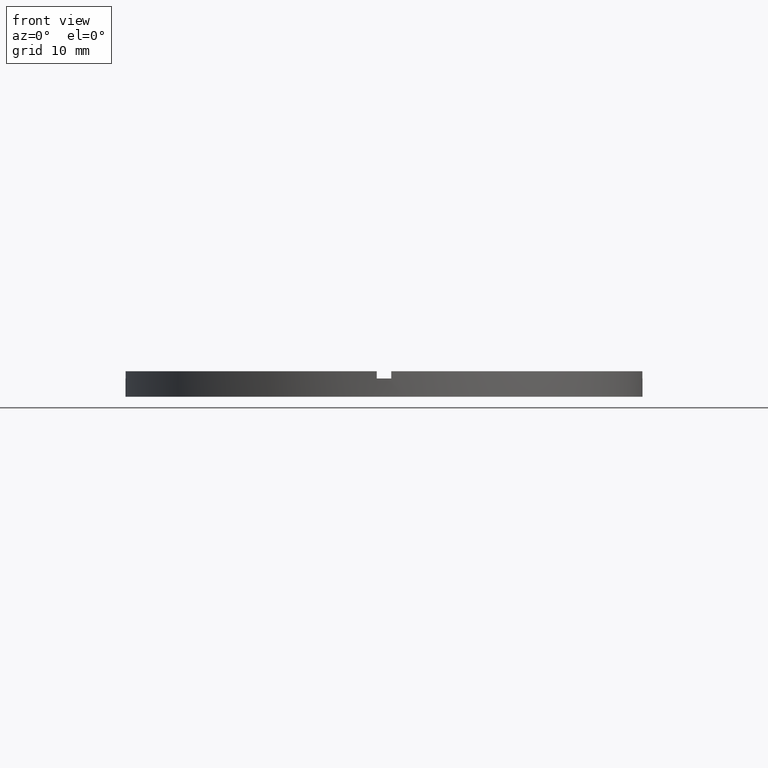
[diagram: clean part render]
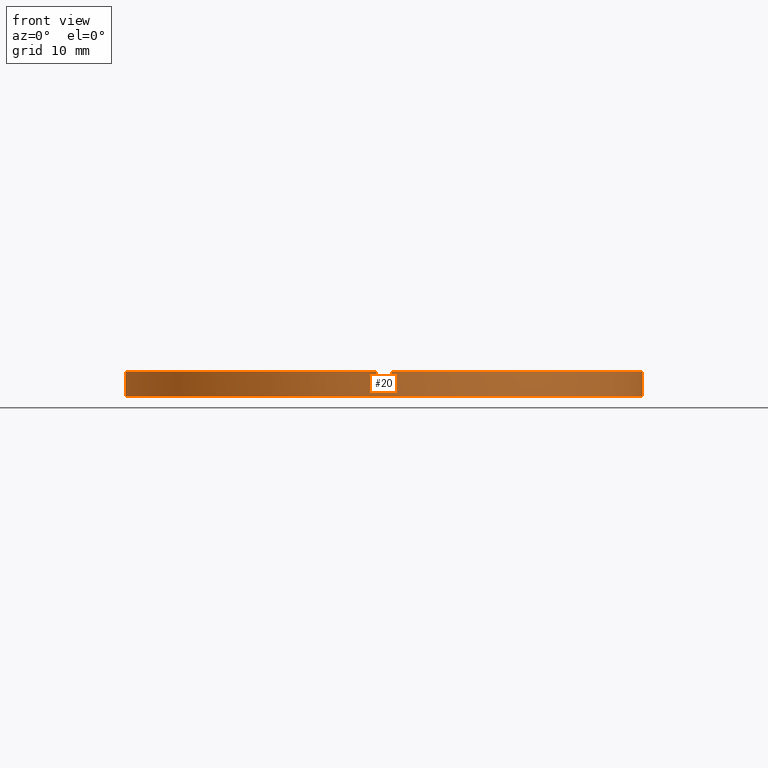
[diagram: same view with one face highlighted and labeled with its STEP entity id]
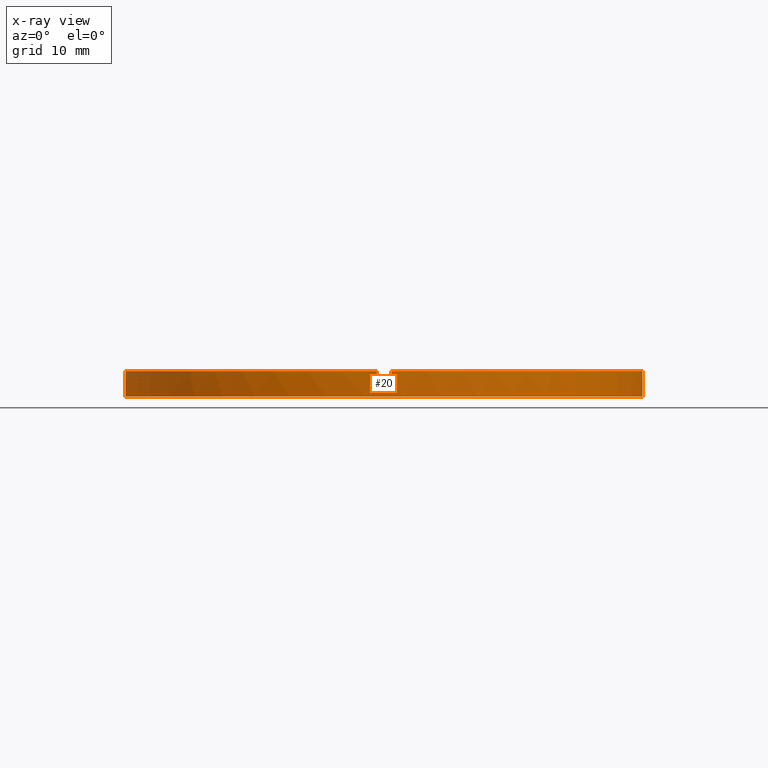
[diagram: x-ray of the same camera — body ghosted, the highlighted face saturated]
A machine part, front view. The second image highlights one B-rep face of the part: STEP entity #20.
The next image is the same camera in x-ray: the body ghosted, the highlighted face saturated — about 0% of this face is hidden behind the body in this view.
In plain terms, the highlighted cylindrical surface (partial cylindrical patch) has radius 35.5 mm, axis along (-0, -0, -1).
Its self-contained STEP definition (entity closure, byte-faithful):
#2 = AXIS2_PLACEMENT_3D ( 'NONE', #292, #296, #331 ) ;
#4 = CARTESIAN_POINT ( 'NONE',  ( -35.50000000000000711, 0.000000000000000000, 0.000000000000000000 ) ) ;
#10 = EDGE_CURVE ( 'NONE', #427, #169, #137, .T. ) ;
#11 = VECTOR ( 'NONE', #768, 1000.000000000000000 ) ;
#14 = DIRECTION ( 'NONE',  ( 0.000000000000000000, 0.000000000000000000, 1.000000000000000000 ) ) ;
#20 = ADVANCED_FACE ( 'NONE', ( #158 ), #433, .T. ) ;
#21 = CARTESIAN_POINT ( 'NONE',  ( 0.9999999999998397948, -35.48591269785801927, 3.500000000000000000 ) ) ;
#24 = EDGE_CURVE ( 'NONE', #731, #686, #691, .T. ) ;
#26 = DIRECTION ( 'NONE',  ( 1.000000000000000000, 0.000000000000000000, 0.000000000000000000 ) ) ;
#30 = CARTESIAN_POINT ( 'NONE',  ( 0.000000000000000000, 0.000000000000000000, 2.500000000000000000 ) ) ;
#36 = CARTESIAN_POINT ( 'NONE',  ( 35.48591269785800506, -1.000000000000157874, 3.500000000000000000 ) ) ;
#37 = DIRECTION ( 'NONE',  ( 0.000000000000000000, 0.000000000000000000, 1.000000000000000000 ) ) ;
#47 = CARTESIAN_POINT ( 'NONE',  ( -1.000000000000160316, -35.48591269785800506, 3.500000000000000000 ) ) ;
#52 = EDGE_CURVE ( 'NONE', #731, #427, #126, .T. ) ;
#59 = CARTESIAN_POINT ( 'NONE',  ( 35.48591269785800506, -1.000000000000157874, 2.500000000000000000 ) ) ;
#97 = CARTESIAN_POINT ( 'NONE',  ( -35.48591269785801217, -1.000000000000026867, 3.500000000000000000 ) ) ;
#110 = CARTESIAN_POINT ( 'NONE',  ( 35.50000000000000711, 4.347496136973104070E-15, 0.000000000000000000 ) ) ;
#113 = AXIS2_PLACEMENT_3D ( 'NONE', #30, #231, #26 ) ;
#116 = ORIENTED_EDGE ( 'NONE', *, *, #201, .T. ) ;
#126 = CIRCLE ( 'NONE', #2, 35.50000000000000711 ) ;
#137 = LINE ( 'NONE', #557, #415 ) ;
#139 = CIRCLE ( 'NONE', #360, 35.50000000000000711 ) ;
#144 = ORIENTED_EDGE ( 'NONE', *, *, #601, .T. ) ;
#151 = CIRCLE ( 'NONE', #270, 35.50000000000000711 ) ;
#154 = LINE ( 'NONE', #97, #450 ) ;
#155 = VERTEX_POINT ( 'NONE', #658 ) ;
#158 = FACE_OUTER_BOUND ( 'NONE', #391, .T. ) ;
#169 = VERTEX_POINT ( 'NONE', #110 ) ;
#201 = EDGE_CURVE ( 'NONE', #155, #429, #154, .T. ) ;
#211 = DIRECTION ( 'NONE',  ( -0.000000000000000000, -0.000000000000000000, -1.000000000000000000 ) ) ;
#230 = ORIENTED_EDGE ( 'NONE', *, *, #52, .F. ) ;
#231 = DIRECTION ( 'NONE',  ( -0.000000000000000000, 0.000000000000000000, 1.000000000000000000 ) ) ;
#235 = ORIENTED_EDGE ( 'NONE', *, *, #332, .F. ) ;
#237 = CARTESIAN_POINT ( 'NONE',  ( 0.000000000000000000, 0.000000000000000000, 3.500000000000000000 ) ) ;
#238 = ORIENTED_EDGE ( 'NONE', *, *, #533, .T. ) ;
#249 = AXIS2_PLACEMENT_3D ( 'NONE', #335, #342, #326 ) ;
#254 = CARTESIAN_POINT ( 'NONE',  ( 35.50000000000000711, 4.347496136973104070E-15, 2.500000000000000000 ) ) ;
#270 = AXIS2_PLACEMENT_3D ( 'NONE', #237, #690, #550 ) ;
#289 = EDGE_CURVE ( 'NONE', #418, #686, #151, .T. ) ;
#292 = CARTESIAN_POINT ( 'NONE',  ( 0.000000000000000000, 0.000000000000000000, 2.500000000000000000 ) ) ;
#296 = DIRECTION ( 'NONE',  ( 0.000000000000000000, 0.000000000000000000, 1.000000000000000000 ) ) ;
#301 = DIRECTION ( 'NONE',  ( -0.000000000000000000, -0.000000000000000000, -1.000000000000000000 ) ) ;
#306 = EDGE_CURVE ( 'NONE', #155, #457, #139, .T. ) ;
#326 = DIRECTION ( 'NONE',  ( -1.000000000000000000, 0.000000000000000000, 0.000000000000000000 ) ) ;
#328 = CARTESIAN_POINT ( 'NONE',  ( 0.000000000000000000, 0.000000000000000000, 3.500000000000000000 ) ) ;
#331 = DIRECTION ( 'NONE',  ( 1.000000000000000000, 0.000000000000000000, 0.000000000000000000 ) ) ;
#332 = EDGE_CURVE ( 'NONE', #406, #720, #432, .T. ) ;
#335 = CARTESIAN_POINT ( 'NONE',  ( 0.000000000000000000, 0.000000000000000000, 3.500000000000000000 ) ) ;
#338 = CARTESIAN_POINT ( 'NONE',  ( 0.000000000000000000, 0.000000000000000000, 0.000000000000000000 ) ) ;
#342 = DIRECTION ( 'NONE',  ( -0.000000000000000000, -0.000000000000000000, -1.000000000000000000 ) ) ;
#347 = LINE ( 'NONE', #47, #351 ) ;
#351 = VECTOR ( 'NONE', #14, 1000.000000000000000 ) ;
#360 = AXIS2_PLACEMENT_3D ( 'NONE', #328, #37, #392 ) ;
#390 = ORIENTED_EDGE ( 'NONE', *, *, #765, .F. ) ;
#391 = EDGE_LOOP ( 'NONE', ( #513, #230, #650, #670, #759, #235, #144, #393, #116, #390, #421, #238 ) ) ;
#392 = DIRECTION ( 'NONE',  ( 1.000000000000000000, 0.000000000000000000, 0.000000000000000000 ) ) ;
#393 = ORIENTED_EDGE ( 'NONE', *, *, #306, .F. ) ;
#396 = DIRECTION ( 'NONE',  ( 0.000000000000000000, 0.000000000000000000, 1.000000000000000000 ) ) ;
#399 = DIRECTION ( 'NONE',  ( 1.000000000000000000, 0.000000000000000000, 0.000000000000000000 ) ) ;
#406 = VERTEX_POINT ( 'NONE', #576 ) ;
#415 = VECTOR ( 'NONE', #301, 1000.000000000000000 ) ;
#418 = VERTEX_POINT ( 'NONE', #582 ) ;
#421 = ORIENTED_EDGE ( 'NONE', *, *, #689, .T. ) ;
#427 = VERTEX_POINT ( 'NONE', #254 ) ;
#429 = VERTEX_POINT ( 'NONE', #649 ) ;
#432 = CIRCLE ( 'NONE', #113, 35.50000000000000711 ) ;
#433 = CYLINDRICAL_SURFACE ( 'NONE', #249, 35.50000000000000711 ) ;
#450 = VECTOR ( 'NONE', #211, 1000.000000000000000 ) ;
#457 = VERTEX_POINT ( 'NONE', #606 ) ;
#470 = DIRECTION ( 'NONE',  ( -0.000000000000000000, -0.000000000000000000, -1.000000000000000000 ) ) ;
#493 = VERTEX_POINT ( 'NONE', #590 ) ;
#508 = VERTEX_POINT ( 'NONE', #4 ) ;
#513 = ORIENTED_EDGE ( 'NONE', *, *, #10, .F. ) ;
#533 = EDGE_CURVE ( 'NONE', #508, #169, #610, .T. ) ;
#540 = CARTESIAN_POINT ( 'NONE',  ( -35.50000000000000711, 0.000000000000000000, 3.500000000000000000 ) ) ;
#544 = LINE ( 'NONE', #540, #546 ) ;
#546 = VECTOR ( 'NONE', #470, 1000.000000000000000 ) ;
#550 = DIRECTION ( 'NONE',  ( 1.000000000000000000, 0.000000000000000000, 0.000000000000000000 ) ) ;
#551 = CIRCLE ( 'NONE', #749, 35.50000000000000711 ) ;
#554 = LINE ( 'NONE', #21, #11 ) ;
#557 = CARTESIAN_POINT ( 'NONE',  ( 35.50000000000000711, 4.347496136973104070E-15, 3.500000000000000000 ) ) ;
#566 = DIRECTION ( 'NONE',  ( 1.000000000000000000, 0.000000000000000000, 0.000000000000000000 ) ) ;
#571 = CARTESIAN_POINT ( 'NONE',  ( 0.9999999999998397948, -35.48591269785801927, 2.500000000000000000 ) ) ;
#576 = CARTESIAN_POINT ( 'NONE',  ( -1.000000000000160316, -35.48591269785800506, 2.500000000000000000 ) ) ;
#582 = CARTESIAN_POINT ( 'NONE',  ( 0.9999999999998397948, -35.48591269785801927, 3.500000000000000000 ) ) ;
#584 = CARTESIAN_POINT ( 'NONE',  ( 35.48591269785800506, -1.000000000000157874, 3.500000000000000000 ) ) ;
#590 = CARTESIAN_POINT ( 'NONE',  ( -35.50000000000000711, 0.000000000000000000, 2.500000000000000000 ) ) ;
#601 = EDGE_CURVE ( 'NONE', #406, #457, #347, .T. ) ;
#606 = CARTESIAN_POINT ( 'NONE',  ( -1.000000000000160316, -35.48591269785800506, 3.500000000000000000 ) ) ;
#610 = CIRCLE ( 'NONE', #631, 35.50000000000000711 ) ;
#630 = DIRECTION ( 'NONE',  ( 0.000000000000000000, 0.000000000000000000, 1.000000000000000000 ) ) ;
#631 = AXIS2_PLACEMENT_3D ( 'NONE', #338, #783, #566 ) ;
#635 = CARTESIAN_POINT ( 'NONE',  ( 0.000000000000000000, 0.000000000000000000, 2.500000000000000000 ) ) ;
#649 = CARTESIAN_POINT ( 'NONE',  ( -35.48591269785801217, -1.000000000000026867, 2.500000000000000000 ) ) ;
#650 = ORIENTED_EDGE ( 'NONE', *, *, #24, .T. ) ;
#658 = CARTESIAN_POINT ( 'NONE',  ( -35.48591269785801217, -1.000000000000026867, 3.500000000000000000 ) ) ;
#660 = VECTOR ( 'NONE', #396, 1000.000000000000000 ) ;
#670 = ORIENTED_EDGE ( 'NONE', *, *, #289, .F. ) ;
#673 = EDGE_CURVE ( 'NONE', #418, #720, #554, .T. ) ;
#686 = VERTEX_POINT ( 'NONE', #584 ) ;
#689 = EDGE_CURVE ( 'NONE', #493, #508, #544, .T. ) ;
#690 = DIRECTION ( 'NONE',  ( 0.000000000000000000, 0.000000000000000000, 1.000000000000000000 ) ) ;
#691 = LINE ( 'NONE', #36, #660 ) ;
#720 = VERTEX_POINT ( 'NONE', #571 ) ;
#731 = VERTEX_POINT ( 'NONE', #59 ) ;
#749 = AXIS2_PLACEMENT_3D ( 'NONE', #635, #630, #399 ) ;
#759 = ORIENTED_EDGE ( 'NONE', *, *, #673, .T. ) ;
#765 = EDGE_CURVE ( 'NONE', #493, #429, #551, .T. ) ;
#768 = DIRECTION ( 'NONE',  ( -0.000000000000000000, -0.000000000000000000, -1.000000000000000000 ) ) ;
#783 = DIRECTION ( 'NONE',  ( 0.000000000000000000, 0.000000000000000000, 1.000000000000000000 ) ) ;